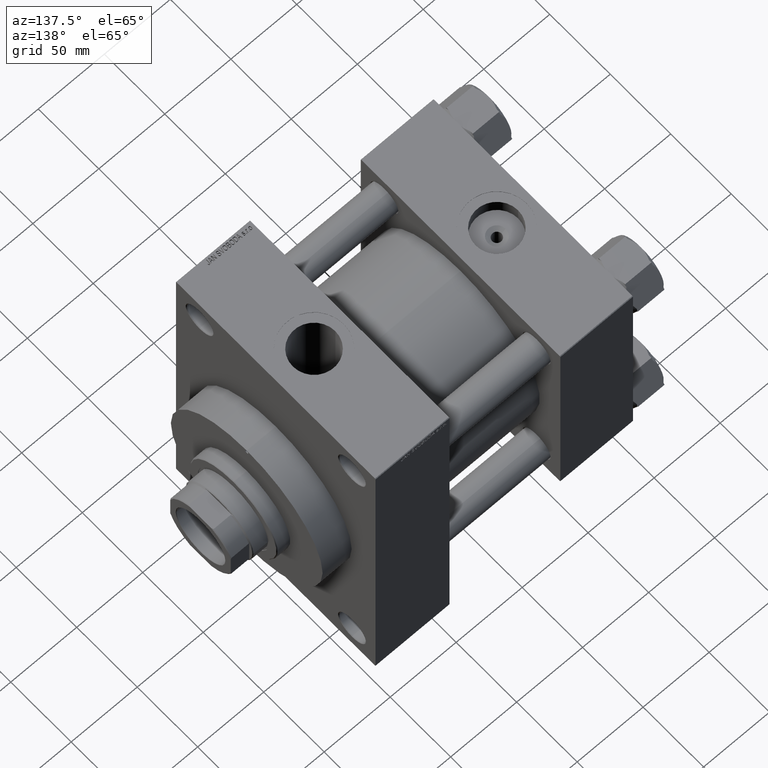
[diagram: clean part render]
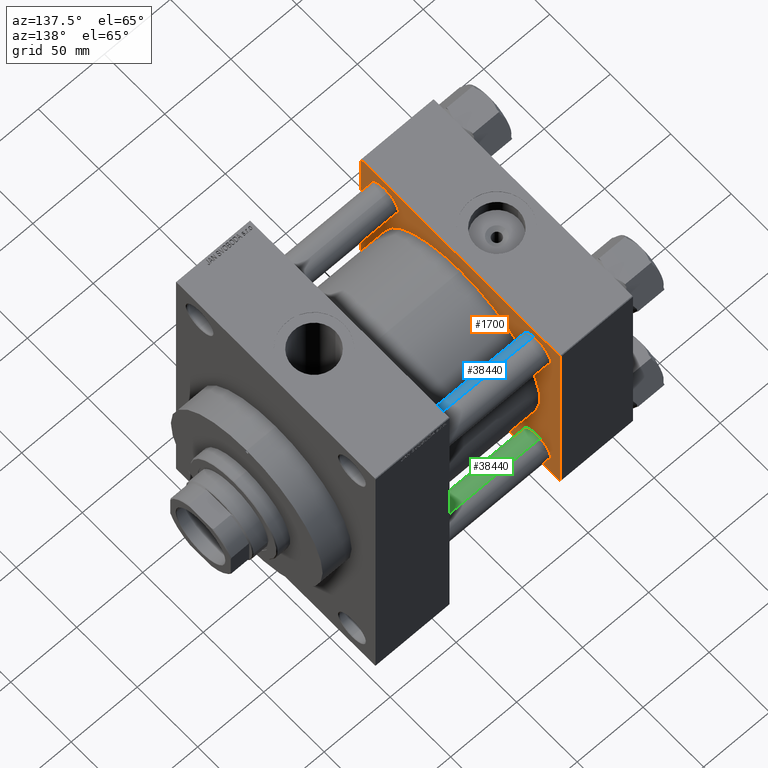
[diagram: same view with three faces highlighted in distinct colors, each labeled with its STEP entity id]
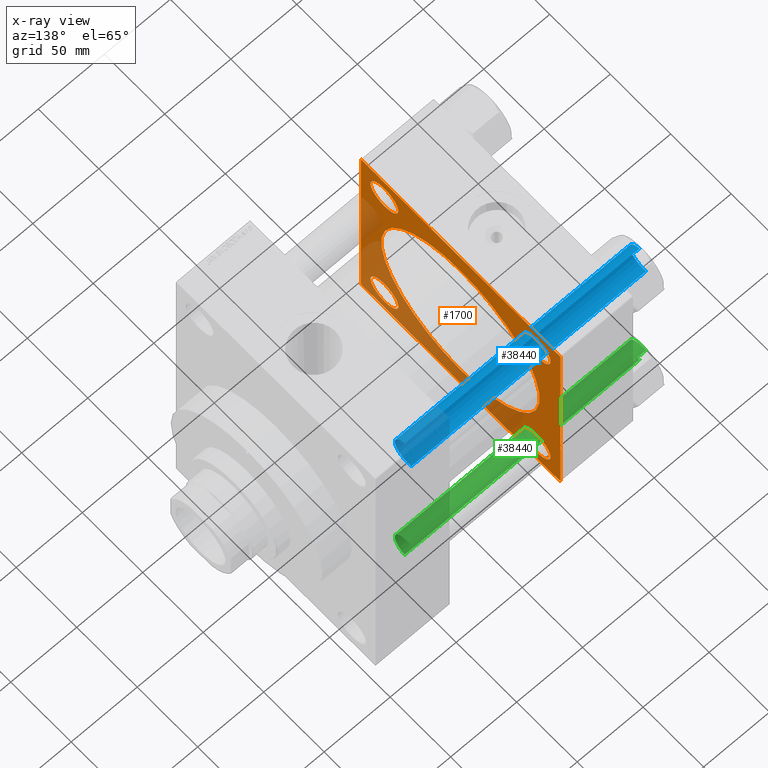
[diagram: x-ray of the same camera — body ghosted, the three highlighted faces saturated]
A machine part, auxiliary view with three faces highlighted in distinct colors.
The next image is the same camera in x-ray (body ghosted, the three faces saturated) — at least one of them is partly hidden behind the body in this view.
Their STEP definitions:

[orange] entity #1700 — the highlighted planar face has unit normal (-1, 0, 0).
#167 = ORIENTED_EDGE ( 'NONE', *, *, #30545, .T. ) ;
#714 = VECTOR ( 'NONE', #25792, 1000.000000000000000 ) ;
#1111 = DIRECTION ( 'NONE',  ( -1.000000000000000000, 0.000000000000000000, 0.000000000000000000 ) ) ;
#1159 = EDGE_LOOP ( 'NONE', ( #12909, #10359 ) ) ;
#1700 = ADVANCED_FACE ( 'NONE', ( #10449, #28108, #39742, #32243, #25461, #21107 ), #31755, .F. ) ;
#2130 = VERTEX_POINT ( 'NONE', #15933 ) ;
#2864 = CIRCLE ( 'NONE', #16776, 11.49999999999998224 ) ;
#2931 = ORIENTED_EDGE ( 'NONE', *, *, #44103, .T. ) ;
#2955 = DIRECTION ( 'NONE',  ( -1.000000000000000000, 0.000000000000000000, 0.000000000000000000 ) ) ;
#3101 = VERTEX_POINT ( 'NONE', #34391 ) ;
#3153 = VERTEX_POINT ( 'NONE', #16240 ) ;
#3500 = DIRECTION ( 'NONE',  ( 0.000000000000000000, 0.000000000000000000, 1.000000000000000000 ) ) ;
#3911 = CIRCLE ( 'NONE', #12407, 11.49999999999998224 ) ;
#4283 = DIRECTION ( 'NONE',  ( 0.000000000000000000, -1.000000000000000000, -1.682156097916903588E-16 ) ) ;
#4414 = ORIENTED_EDGE ( 'NONE', *, *, #42940, .T. ) ;
#4584 = EDGE_CURVE ( 'NONE', #2130, #15621, #33574, .T. ) ;
#5621 = ORIENTED_EDGE ( 'NONE', *, *, #4584, .F. ) ;
#5626 = AXIS2_PLACEMENT_3D ( 'NONE', #17944, #6064, #14064 ) ;
#6064 = DIRECTION ( 'NONE',  ( -1.000000000000000000, 0.000000000000000000, 0.000000000000000000 ) ) ;
#6387 = EDGE_CURVE ( 'NONE', #46632, #41535, #23430, .T. ) ;
#6563 = CIRCLE ( 'NONE', #33628, 11.49999999999998224 ) ;
#6844 = CIRCLE ( 'NONE', #16152, 11.49999999999998224 ) ;
#6853 = ORIENTED_EDGE ( 'NONE', *, *, #27500, .T. ) ;
#7569 = VECTOR ( 'NONE', #45143, 1000.000000000000114 ) ;
#7905 = CARTESIAN_POINT ( 'NONE',  ( 55.00000000000000000, 82.50000000000002842, 82.50000000000002842 ) ) ;
#7982 = VERTEX_POINT ( 'NONE', #38351 ) ;
#8011 = LINE ( 'NONE', #22769, #27610 ) ;
#8617 = DIRECTION ( 'NONE',  ( -1.000000000000000000, 0.000000000000000000, 0.000000000000000000 ) ) ;
#8779 = CARTESIAN_POINT ( 'NONE',  ( 55.00000000000000000, -62.94999999999998153, 62.95000000000001705 ) ) ;
#8971 = CARTESIAN_POINT ( 'NONE',  ( 55.00000000000000000, -82.49999999999997158, 82.50000000000001421 ) ) ;
#9180 = CIRCLE ( 'NONE', #31609, 11.49999999999998224 ) ;
#9982 = ORIENTED_EDGE ( 'NONE', *, *, #13709, .T. ) ;
#10359 = ORIENTED_EDGE ( 'NONE', *, *, #26171, .T. ) ;
#10449 = FACE_BOUND ( 'NONE', #19492, .T. ) ;
#10471 = ORIENTED_EDGE ( 'NONE', *, *, #21143, .T. ) ;
#10502 = DIRECTION ( 'NONE',  ( 0.000000000000000000, 0.000000000000000000, 1.000000000000000000 ) ) ;
#11197 = AXIS2_PLACEMENT_3D ( 'NONE', #23607, #1111, #31349 ) ;
#11657 = VERTEX_POINT ( 'NONE', #34802 ) ;
#12407 = AXIS2_PLACEMENT_3D ( 'NONE', #43357, #2955, #39983 ) ;
#12909 = ORIENTED_EDGE ( 'NONE', *, *, #15317, .T. ) ;
#13156 = ORIENTED_EDGE ( 'NONE', *, *, #6387, .T. ) ;
#13709 = EDGE_CURVE ( 'NONE', #7982, #43539, #44038, .T. ) ;
#13722 = CIRCLE ( 'NONE', #19912, 65.50000000000001421 ) ;
#14064 = DIRECTION ( 'NONE',  ( 0.000000000000000000, 0.000000000000000000, 1.000000000000000000 ) ) ;
#14101 = CARTESIAN_POINT ( 'NONE',  ( 55.00000000000000000, -82.50000000000000000, -81.99999999999998579 ) ) ;
#14641 = CARTESIAN_POINT ( 'NONE',  ( 55.00000000000000000, -62.94999999999998153, 62.95000000000001705 ) ) ;
#15069 = EDGE_CURVE ( 'NONE', #41535, #46632, #22049, .T. ) ;
#15179 = CARTESIAN_POINT ( 'NONE',  ( 55.00000000000000000, 82.50000000000002842, -82.49999999999997158 ) ) ;
#15211 = EDGE_CURVE ( 'NONE', #2130, #36548, #43428, .T. ) ;
#15317 = EDGE_CURVE ( 'NONE', #18049, #16411, #6563, .T. ) ;
#15621 = VERTEX_POINT ( 'NONE', #23024 ) ;
#15933 = CARTESIAN_POINT ( 'NONE',  ( 55.00000000000000000, 82.00000000000005684, -82.49999999999997158 ) ) ;
#16152 = AXIS2_PLACEMENT_3D ( 'NONE', #8779, #31034, #31503 ) ;
#16240 = CARTESIAN_POINT ( 'NONE',  ( 55.00000000000000000, 62.95000000000000284, 74.44999999999998863 ) ) ;
#16275 = CARTESIAN_POINT ( 'NONE',  ( 55.00000000000000000, 82.50000000000002842, -82.00000000000000000 ) ) ;
#16411 = VERTEX_POINT ( 'NONE', #43809 ) ;
#16606 = VERTEX_POINT ( 'NONE', #47156 ) ;
#16691 = ORIENTED_EDGE ( 'NONE', *, *, #21088, .F. ) ;
#16776 = AXIS2_PLACEMENT_3D ( 'NONE', #17787, #28653, #10502 ) ;
#16953 = CARTESIAN_POINT ( 'NONE',  ( 54.99999999999999289, -2.602085213965210642E-15, 0.000000000000000000 ) ) ;
#17233 = DIRECTION ( 'NONE',  ( -1.000000000000000000, 0.000000000000000000, 0.000000000000000000 ) ) ;
#17261 = VERTEX_POINT ( 'NONE', #14101 ) ;
#17422 = DIRECTION ( 'NONE',  ( 0.000000000000000000, 0.000000000000000000, 1.000000000000000000 ) ) ;
#17509 = EDGE_CURVE ( 'NONE', #11657, #17261, #27352, .T. ) ;
#17628 = AXIS2_PLACEMENT_3D ( 'NONE', #16953, #24440, #46439 ) ;
#17781 = AXIS2_PLACEMENT_3D ( 'NONE', #39984, #17233, #24735 ) ;
#17787 = CARTESIAN_POINT ( 'NONE',  ( 55.00000000000000000, 62.95000000000000284, 62.95000000000000284 ) ) ;
#17944 = CARTESIAN_POINT ( 'NONE',  ( 55.00000000000000000, 62.95000000000000284, -62.95000000000000284 ) ) ;
#18049 = VERTEX_POINT ( 'NONE', #18588 ) ;
#18068 = CARTESIAN_POINT ( 'NONE',  ( 55.00000000000000000, 82.50000000000002842, 82.50000000000002842 ) ) ;
#18588 = CARTESIAN_POINT ( 'NONE',  ( 55.00000000000000000, -62.94999999999998153, 51.45000000000003837 ) ) ;
#18766 = CARTESIAN_POINT ( 'NONE',  ( 55.00000000000000000, 62.95000000000000284, -74.44999999999998863 ) ) ;
#18875 = CARTESIAN_POINT ( 'NONE',  ( 55.00000000000000000, 82.00000000000005684, 82.50000000000002842 ) ) ;
#19492 = EDGE_LOOP ( 'NONE', ( #20443, #167 ) ) ;
#19519 = CARTESIAN_POINT ( 'NONE',  ( 55.00000000000000000, -62.94999999999998153, -62.95000000000001705 ) ) ;
#19750 = DIRECTION ( 'NONE',  ( 0.000000000000000000, 0.000000000000000000, 1.000000000000000000 ) ) ;
#19883 = DIRECTION ( 'NONE',  ( 0.000000000000000000, -1.682156097916903588E-16, -1.000000000000000000 ) ) ;
#19913 = EDGE_CURVE ( 'NONE', #16606, #32013, #13722, .T. ) ;
#19912 = AXIS2_PLACEMENT_3D ( 'NONE', #33608, #26582, #27056 ) ;
#20443 = ORIENTED_EDGE ( 'NONE', *, *, #27165, .T. ) ;
#21088 = EDGE_CURVE ( 'NONE', #7982, #36548, #26771, .T. ) ;
#21107 = FACE_OUTER_BOUND ( 'NONE', #26537, .T. ) ;
#21119 = ORIENTED_EDGE ( 'NONE', *, *, #17509, .T. ) ;
#21143 = EDGE_CURVE ( 'NONE', #35429, #11657, #23149, .T. ) ;
#21421 = CARTESIAN_POINT ( 'NONE',  ( 55.00000000000000000, 82.50000000000002842, -82.00000000000000000 ) ) ;
#21510 = ORIENTED_EDGE ( 'NONE', *, *, #15069, .T. ) ;
#22049 = CIRCLE ( 'NONE', #11197, 11.49999999999998224 ) ;
#22259 = DIRECTION ( 'NONE',  ( 0.000000000000000000, -0.7071067811865474617, 0.7071067811865474617 ) ) ;
#22769 = CARTESIAN_POINT ( 'NONE',  ( 55.00000000000000000, -82.00000000000000000, -82.50000000000000000 ) ) ;
#23024 = CARTESIAN_POINT ( 'NONE',  ( 55.00000000000000000, -82.00000000000000000, -82.50000000000000000 ) ) ;
#23149 = LINE ( 'NONE', #26536, #7569 ) ;
#23430 = CIRCLE ( 'NONE', #5626, 11.49999999999998224 ) ;
#23607 = CARTESIAN_POINT ( 'NONE',  ( 55.00000000000000000, 62.95000000000000284, -62.95000000000000284 ) ) ;
#23987 = EDGE_LOOP ( 'NONE', ( #13156, #21510 ) ) ;
#24440 = DIRECTION ( 'NONE',  ( 1.000000000000000000, -0.000000000000000000, -0.000000000000000000 ) ) ;
#24735 = DIRECTION ( 'NONE',  ( 0.000000000000000000, 0.000000000000000000, 1.000000000000000000 ) ) ;
#25396 = CARTESIAN_POINT ( 'NONE',  ( 55.00000000000000000, 82.00000000000005684, 82.50000000000002842 ) ) ;
#25461 = FACE_BOUND ( 'NONE', #44930, .T. ) ;
#25475 = VERTEX_POINT ( 'NONE', #27325 ) ;
#25792 = DIRECTION ( 'NONE',  ( 0.000000000000000000, -1.000000000000000000, -8.410780489584519171E-17 ) ) ;
#26171 = EDGE_CURVE ( 'NONE', #16411, #18049, #6844, .T. ) ;
#26536 = CARTESIAN_POINT ( 'NONE',  ( 55.00000000000000000, -82.49999999999997158, 82.00000000000001421 ) ) ;
#26537 = EDGE_LOOP ( 'NONE', ( #5621, #46782, #16691, #9982, #44631, #10471, #21119, #2931 ) ) ;
#26582 = DIRECTION ( 'NONE',  ( 1.000000000000000000, -0.000000000000000000, -0.000000000000000000 ) ) ;
#26771 = LINE ( 'NONE', #7905, #43871 ) ;
#27056 = DIRECTION ( 'NONE',  ( 0.000000000000000000, 0.000000000000000000, 1.000000000000000000 ) ) ;
#27165 = EDGE_CURVE ( 'NONE', #35120, #3101, #45509, .T. ) ;
#27325 = CARTESIAN_POINT ( 'NONE',  ( 55.00000000000000000, 62.95000000000000284, 51.45000000000002416 ) ) ;
#27352 = LINE ( 'NONE', #8971, #42964 ) ;
#27500 = EDGE_CURVE ( 'NONE', #3153, #25475, #9180, .T. ) ;
#27610 = VECTOR ( 'NONE', #37532, 999.9999999999998863 ) ;
#28100 = CARTESIAN_POINT ( 'NONE',  ( 55.00000000000000000, -62.94999999999998153, -74.45000000000000284 ) ) ;
#28108 = FACE_BOUND ( 'NONE', #23987, .T. ) ;
#28420 = CARTESIAN_POINT ( 'NONE',  ( 54.99999999999999289, 5.419351320449953395E-15, -65.50000000000001421 ) ) ;
#28573 = EDGE_CURVE ( 'NONE', #43539, #35429, #33061, .T. ) ;
#28653 = DIRECTION ( 'NONE',  ( -1.000000000000000000, 0.000000000000000000, 0.000000000000000000 ) ) ;
#30545 = EDGE_CURVE ( 'NONE', #3101, #35120, #3911, .T. ) ;
#31009 = EDGE_LOOP ( 'NONE', ( #4414, #6853 ) ) ;
#31034 = DIRECTION ( 'NONE',  ( -1.000000000000000000, 0.000000000000000000, 0.000000000000000000 ) ) ;
#31349 = DIRECTION ( 'NONE',  ( 0.000000000000000000, 0.000000000000000000, 1.000000000000000000 ) ) ;
#31503 = DIRECTION ( 'NONE',  ( 0.000000000000000000, 0.000000000000000000, 1.000000000000000000 ) ) ;
#31609 = AXIS2_PLACEMENT_3D ( 'NONE', #31937, #32431, #17422 ) ;
#31755 = PLANE ( 'NONE',  #17781 ) ;
#31937 = CARTESIAN_POINT ( 'NONE',  ( 55.00000000000000000, 62.95000000000000284, 62.95000000000000284 ) ) ;
#32013 = VERTEX_POINT ( 'NONE', #28420 ) ;
#32243 = FACE_BOUND ( 'NONE', #31009, .T. ) ;
#32382 = AXIS2_PLACEMENT_3D ( 'NONE', #19519, #8617, #19750 ) ;
#32431 = DIRECTION ( 'NONE',  ( -1.000000000000000000, 0.000000000000000000, 0.000000000000000000 ) ) ;
#33061 = LINE ( 'NONE', #18068, #714 ) ;
#33574 = LINE ( 'NONE', #15179, #37945 ) ;
#33608 = CARTESIAN_POINT ( 'NONE',  ( 54.99999999999999289, -2.602085213965210642E-15, 0.000000000000000000 ) ) ;
#33628 = AXIS2_PLACEMENT_3D ( 'NONE', #14641, #36667, #3500 ) ;
#33854 = CIRCLE ( 'NONE', #17628, 65.50000000000001421 ) ;
#34391 = CARTESIAN_POINT ( 'NONE',  ( 55.00000000000000000, -62.94999999999998153, -51.45000000000003837 ) ) ;
#34418 = VECTOR ( 'NONE', #43191, 1000.000000000000114 ) ;
#34615 = CARTESIAN_POINT ( 'NONE',  ( 55.00000000000000000, -81.99999999999997158, 82.50000000000001421 ) ) ;
#34802 = CARTESIAN_POINT ( 'NONE',  ( 55.00000000000000000, -82.49999999999997158, 82.00000000000001421 ) ) ;
#35120 = VERTEX_POINT ( 'NONE', #28100 ) ;
#35429 = VERTEX_POINT ( 'NONE', #34615 ) ;
#35658 = CARTESIAN_POINT ( 'NONE',  ( 55.00000000000000000, 62.95000000000000284, -51.45000000000002416 ) ) ;
#36548 = VERTEX_POINT ( 'NONE', #16275 ) ;
#36667 = DIRECTION ( 'NONE',  ( -1.000000000000000000, 0.000000000000000000, 0.000000000000000000 ) ) ;
#37532 = DIRECTION ( 'NONE',  ( 0.000000000000000000, 0.7071067811865376918, -0.7071067811865574537 ) ) ;
#37945 = VECTOR ( 'NONE', #4283, 1000.000000000000000 ) ;
#38351 = CARTESIAN_POINT ( 'NONE',  ( 55.00000000000000000, 82.50000000000002842, 82.00000000000005684 ) ) ;
#39333 = ORIENTED_EDGE ( 'NONE', *, *, #44955, .F. ) ;
#39742 = FACE_BOUND ( 'NONE', #1159, .T. ) ;
#39983 = DIRECTION ( 'NONE',  ( 0.000000000000000000, 0.000000000000000000, 1.000000000000000000 ) ) ;
#39984 = CARTESIAN_POINT ( 'NONE',  ( 55.00000000000000000, 0.000000000000000000, 0.000000000000000000 ) ) ;
#41535 = VERTEX_POINT ( 'NONE', #35658 ) ;
#41558 = ORIENTED_EDGE ( 'NONE', *, *, #19913, .F. ) ;
#42940 = EDGE_CURVE ( 'NONE', #25475, #3153, #2864, .T. ) ;
#42964 = VECTOR ( 'NONE', #19883, 1000.000000000000000 ) ;
#43191 = DIRECTION ( 'NONE',  ( -0.000000000000000000, 0.7071067811865474617, 0.7071067811865474617 ) ) ;
#43357 = CARTESIAN_POINT ( 'NONE',  ( 55.00000000000000000, -62.94999999999998153, -62.95000000000001705 ) ) ;
#43428 = LINE ( 'NONE', #21421, #34418 ) ;
#43539 = VERTEX_POINT ( 'NONE', #25396 ) ;
#43809 = CARTESIAN_POINT ( 'NONE',  ( 55.00000000000000000, -62.94999999999998153, 74.45000000000000284 ) ) ;
#43871 = VECTOR ( 'NONE', #45381, 1000.000000000000000 ) ;
#44038 = LINE ( 'NONE', #18875, #45169 ) ;
#44103 = EDGE_CURVE ( 'NONE', #17261, #15621, #8011, .T. ) ;
#44631 = ORIENTED_EDGE ( 'NONE', *, *, #28573, .T. ) ;
#44930 = EDGE_LOOP ( 'NONE', ( #41558, #39333 ) ) ;
#44955 = EDGE_CURVE ( 'NONE', #32013, #16606, #33854, .T. ) ;
#45143 = DIRECTION ( 'NONE',  ( -0.000000000000000000, -0.7071067811865474617, -0.7071067811865474617 ) ) ;
#45169 = VECTOR ( 'NONE', #22259, 1000.000000000000114 ) ;
#45381 = DIRECTION ( 'NONE',  ( 0.000000000000000000, 0.000000000000000000, -1.000000000000000000 ) ) ;
#45509 = CIRCLE ( 'NONE', #32382, 11.49999999999998224 ) ;
#46439 = DIRECTION ( 'NONE',  ( 0.000000000000000000, 0.000000000000000000, 1.000000000000000000 ) ) ;
#46632 = VERTEX_POINT ( 'NONE', #18766 ) ;
#46782 = ORIENTED_EDGE ( 'NONE', *, *, #15211, .T. ) ;
#47156 = CARTESIAN_POINT ( 'NONE',  ( 54.99999999999999289, -2.602085213965210642E-15, 65.50000000000001421 ) ) ;

[blue] entity #38440 — the highlighted cylindrical surface (edge-blend (fillet) strip) has radius 11 mm, axis along (-1, -0, 0).
#849 = EDGE_CURVE ( 'NONE', #11550, #38079, #32234, .T. ) ;
#1138 = ORIENTED_EDGE ( 'NONE', *, *, #4611, .T. ) ;
#1681 = CYLINDRICAL_SURFACE ( 'NONE', #17555, 11.00000000000000000 ) ;
#3451 = ORIENTED_EDGE ( 'NONE', *, *, #43001, .T. ) ;
#4611 = EDGE_CURVE ( 'NONE', #11550, #31943, #23283, .T. ) ;
#4674 = DIRECTION ( 'NONE',  ( -0.000000000000000000, -0.000000000000000000, -1.000000000000000000 ) ) ;
#6144 = LINE ( 'NONE', #41220, #33030 ) ;
#8435 = CARTESIAN_POINT ( 'NONE',  ( 11.00000000000000000, 1.347111479062088207E-15, 178.5000000000000853 ) ) ;
#8848 = CARTESIAN_POINT ( 'NONE',  ( -11.00000000000000000, 0.000000000000000000, 178.5000000000000853 ) ) ;
#11550 = VERTEX_POINT ( 'NONE', #8435 ) ;
#12024 = CARTESIAN_POINT ( 'NONE',  ( 0.000000000000000000, 0.000000000000000000, 178.5000000000000853 ) ) ;
#12164 = CIRCLE ( 'NONE', #25297, 11.00000000000000000 ) ;
#16232 = DIRECTION ( 'NONE',  ( -0.000000000000000000, -0.000000000000000000, -1.000000000000000000 ) ) ;
#16473 = ORIENTED_EDGE ( 'NONE', *, *, #23771, .T. ) ;
#16528 = DIRECTION ( 'NONE',  ( 1.000000000000000000, 0.000000000000000000, 0.000000000000000000 ) ) ;
#17242 = DIRECTION ( 'NONE',  ( -0.000000000000000000, -0.000000000000000000, 1.000000000000000000 ) ) ;
#17555 = AXIS2_PLACEMENT_3D ( 'NONE', #41398, #16232, #34140 ) ;
#19771 = DIRECTION ( 'NONE',  ( 0.000000000000000000, 0.000000000000000000, -1.000000000000000000 ) ) ;
#23158 = DIRECTION ( 'NONE',  ( 1.000000000000000000, 0.000000000000000000, 0.000000000000000000 ) ) ;
#23283 = CIRCLE ( 'NONE', #28670, 11.00000000000000000 ) ;
#23771 = EDGE_CURVE ( 'NONE', #36910, #38079, #12164, .T. ) ;
#25297 = AXIS2_PLACEMENT_3D ( 'NONE', #35156, #17242, #16528 ) ;
#27762 = VECTOR ( 'NONE', #36106, 1000.000000000000000 ) ;
#28408 = CARTESIAN_POINT ( 'NONE',  ( 11.00000000000000000, 1.347111479062088207E-15, 0.5000000000001392220 ) ) ;
#28670 = AXIS2_PLACEMENT_3D ( 'NONE', #12024, #19771, #23158 ) ;
#31943 = VERTEX_POINT ( 'NONE', #8848 ) ;
#32234 = LINE ( 'NONE', #42859, #27762 ) ;
#33030 = VECTOR ( 'NONE', #4674, 1000.000000000000000 ) ;
#34140 = DIRECTION ( 'NONE',  ( -1.000000000000000000, 0.000000000000000000, 0.000000000000000000 ) ) ;
#34382 = FACE_OUTER_BOUND ( 'NONE', #39718, .T. ) ;
#35156 = CARTESIAN_POINT ( 'NONE',  ( 0.000000000000000000, 0.000000000000000000, 0.5000000000001392220 ) ) ;
#36106 = DIRECTION ( 'NONE',  ( -0.000000000000000000, -0.000000000000000000, -1.000000000000000000 ) ) ;
#36910 = VERTEX_POINT ( 'NONE', #47074 ) ;
#38079 = VERTEX_POINT ( 'NONE', #28408 ) ;
#38440 = ADVANCED_FACE ( 'NONE', ( #34382 ), #1681, .T. ) ;
#39718 = EDGE_LOOP ( 'NONE', ( #43641, #1138, #3451, #16473 ) ) ;
#41220 = CARTESIAN_POINT ( 'NONE',  ( -11.00000000000000000, 0.000000000000000000, 179.0000000000000000 ) ) ;
#41398 = CARTESIAN_POINT ( 'NONE',  ( 0.000000000000000000, 0.000000000000000000, 179.0000000000000000 ) ) ;
#42859 = CARTESIAN_POINT ( 'NONE',  ( 11.00000000000000000, 1.347111479062088207E-15, 179.0000000000000000 ) ) ;
#43001 = EDGE_CURVE ( 'NONE', #31943, #36910, #6144, .T. ) ;
#43641 = ORIENTED_EDGE ( 'NONE', *, *, #849, .F. ) ;
#47074 = CARTESIAN_POINT ( 'NONE',  ( -11.00000000000000000, 0.000000000000000000, 0.5000000000001392220 ) ) ;

[green] entity #38440 — the highlighted cylindrical surface (edge-blend (fillet) strip) has radius 11 mm, axis along (1, -0, 0).
#849 = EDGE_CURVE ( 'NONE', #11550, #38079, #32234, .T. ) ;
#1138 = ORIENTED_EDGE ( 'NONE', *, *, #4611, .T. ) ;
#1681 = CYLINDRICAL_SURFACE ( 'NONE', #17555, 11.00000000000000000 ) ;
#3451 = ORIENTED_EDGE ( 'NONE', *, *, #43001, .T. ) ;
#4611 = EDGE_CURVE ( 'NONE', #11550, #31943, #23283, .T. ) ;
#4674 = DIRECTION ( 'NONE',  ( -0.000000000000000000, -0.000000000000000000, -1.000000000000000000 ) ) ;
#6144 = LINE ( 'NONE', #41220, #33030 ) ;
#8435 = CARTESIAN_POINT ( 'NONE',  ( 11.00000000000000000, 1.347111479062088207E-15, 178.5000000000000853 ) ) ;
#8848 = CARTESIAN_POINT ( 'NONE',  ( -11.00000000000000000, 0.000000000000000000, 178.5000000000000853 ) ) ;
#11550 = VERTEX_POINT ( 'NONE', #8435 ) ;
#12024 = CARTESIAN_POINT ( 'NONE',  ( 0.000000000000000000, 0.000000000000000000, 178.5000000000000853 ) ) ;
#12164 = CIRCLE ( 'NONE', #25297, 11.00000000000000000 ) ;
#16232 = DIRECTION ( 'NONE',  ( -0.000000000000000000, -0.000000000000000000, -1.000000000000000000 ) ) ;
#16473 = ORIENTED_EDGE ( 'NONE', *, *, #23771, .T. ) ;
#16528 = DIRECTION ( 'NONE',  ( 1.000000000000000000, 0.000000000000000000, 0.000000000000000000 ) ) ;
#17242 = DIRECTION ( 'NONE',  ( -0.000000000000000000, -0.000000000000000000, 1.000000000000000000 ) ) ;
#17555 = AXIS2_PLACEMENT_3D ( 'NONE', #41398, #16232, #34140 ) ;
#19771 = DIRECTION ( 'NONE',  ( 0.000000000000000000, 0.000000000000000000, -1.000000000000000000 ) ) ;
#23158 = DIRECTION ( 'NONE',  ( 1.000000000000000000, 0.000000000000000000, 0.000000000000000000 ) ) ;
#23283 = CIRCLE ( 'NONE', #28670, 11.00000000000000000 ) ;
#23771 = EDGE_CURVE ( 'NONE', #36910, #38079, #12164, .T. ) ;
#25297 = AXIS2_PLACEMENT_3D ( 'NONE', #35156, #17242, #16528 ) ;
#27762 = VECTOR ( 'NONE', #36106, 1000.000000000000000 ) ;
#28408 = CARTESIAN_POINT ( 'NONE',  ( 11.00000000000000000, 1.347111479062088207E-15, 0.5000000000001392220 ) ) ;
#28670 = AXIS2_PLACEMENT_3D ( 'NONE', #12024, #19771, #23158 ) ;
#31943 = VERTEX_POINT ( 'NONE', #8848 ) ;
#32234 = LINE ( 'NONE', #42859, #27762 ) ;
#33030 = VECTOR ( 'NONE', #4674, 1000.000000000000000 ) ;
#34140 = DIRECTION ( 'NONE',  ( -1.000000000000000000, 0.000000000000000000, 0.000000000000000000 ) ) ;
#34382 = FACE_OUTER_BOUND ( 'NONE', #39718, .T. ) ;
#35156 = CARTESIAN_POINT ( 'NONE',  ( 0.000000000000000000, 0.000000000000000000, 0.5000000000001392220 ) ) ;
#36106 = DIRECTION ( 'NONE',  ( -0.000000000000000000, -0.000000000000000000, -1.000000000000000000 ) ) ;
#36910 = VERTEX_POINT ( 'NONE', #47074 ) ;
#38079 = VERTEX_POINT ( 'NONE', #28408 ) ;
#38440 = ADVANCED_FACE ( 'NONE', ( #34382 ), #1681, .T. ) ;
#39718 = EDGE_LOOP ( 'NONE', ( #43641, #1138, #3451, #16473 ) ) ;
#41220 = CARTESIAN_POINT ( 'NONE',  ( -11.00000000000000000, 0.000000000000000000, 179.0000000000000000 ) ) ;
#41398 = CARTESIAN_POINT ( 'NONE',  ( 0.000000000000000000, 0.000000000000000000, 179.0000000000000000 ) ) ;
#42859 = CARTESIAN_POINT ( 'NONE',  ( 11.00000000000000000, 1.347111479062088207E-15, 179.0000000000000000 ) ) ;
#43001 = EDGE_CURVE ( 'NONE', #31943, #36910, #6144, .T. ) ;
#43641 = ORIENTED_EDGE ( 'NONE', *, *, #849, .F. ) ;
#47074 = CARTESIAN_POINT ( 'NONE',  ( -11.00000000000000000, 0.000000000000000000, 0.5000000000001392220 ) ) ;